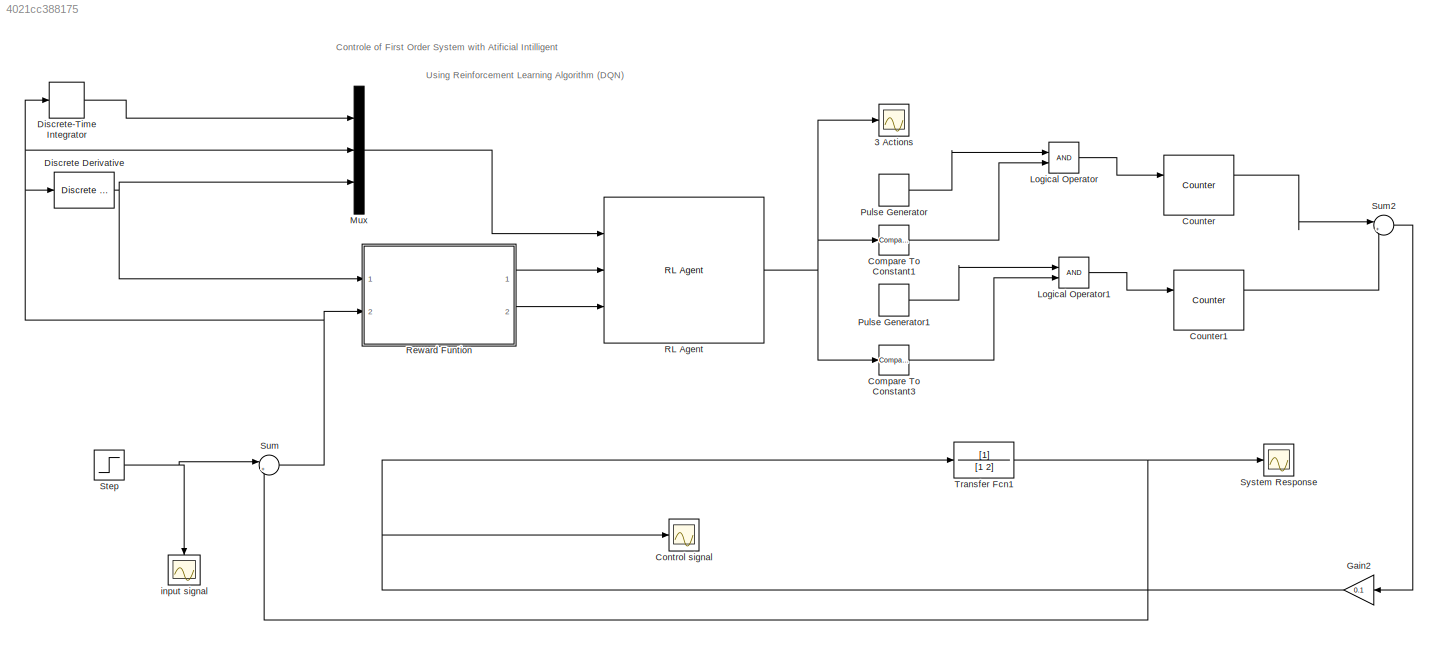
MODEL slx_4021cc388175
KIND model
CONFIG AbsTol = auto
CONFIG EnableMultiTasking = off
CONFIG FixedStep = auto
CONFIG MaxStep = auto
CONFIG MinStep = auto
CONFIG RelTol = 1e-1
CONFIG SampleTimeConstraint = Unconstrained
CONFIG Solver = VariableStepAuto
CONFIG SolverName = VariableStepAuto
CONFIG StartTime = 0.0
CONFIG StopTime = 10.0
BLOCK [Scope] 3 Actions
  Floating = off
  NumInputPorts = 1
  Ports = [1]
  ScopeSpecificationString = Simulink.scopes.TimeScopeBlockCfg('CurrentConfiguration', extmgr.ConfigurationSet(extmgr.Configuration('Core','General UI',true),extmgr.Configuration('Core','Source UI',true),extmgr.Configuration('Sources','WiredSimulink',true,'DataLoggingVariableName','ScopeData2'),extmgr.Configuration('Visuals','Time Domain',true,'SerializedDisplays',{struct('MinYLimReal','-1.25','MaxYLimReal','1.25','YLabelReal...<+1426ch>
BLOCK [Reference] Compare To Constant1  REF=simulink/Logic and Bit
Operations/Compare
To Constant
  Ports = [1, 1]
  SourceBlock = simulink/Logic and Bit\nOperations/Compare\nTo Constant
  SourceProductBaseCode = SL
  SourceProductName = Simulink
  SourceType = Compare To Constant
BLOCK [Reference] Compare To Constant3  REF=simulink/Logic and Bit
Operations/Compare
To Constant
  Ports = [1, 1]
  SourceBlock = simulink/Logic and Bit\nOperations/Compare\nTo Constant
  SourceProductBaseCode = SL
  SourceProductName = Simulink
  SourceType = Compare To Constant
BLOCK [Scope] Control signal
  Floating = off
  NumInputPorts = 1
  Ports = [1]
  ScopeSpecificationString = Simulink.scopes.TimeScopeBlockCfg('CurrentConfiguration', extmgr.ConfigurationSet(extmgr.Configuration('Core','General UI',true),extmgr.Configuration('Core','Source UI',true),extmgr.Configuration('Sources','WiredSimulink',true,'DataLoggingVariableName','ScopeData2'),extmgr.Configuration('Visuals','Time Domain',true,'SerializedDisplays',{struct('MinYLimReal','-0.1375','MaxYLimReal','1.2375','YLabel...<+1435ch>
BLOCK [Reference] Counter  REF=dspswit3/Counter
  Ports = [2, 2]
  SourceBlock = dspswit3/Counter
  SourceProductBaseCode = DS
  SourceProductName = DSP System Toolbox
  SourceType = Counter
BLOCK [Reference] Counter1  REF=dspswit3/Counter
  Ports = [2, 2]
  SourceBlock = dspswit3/Counter
  SourceProductBaseCode = DS
  SourceProductName = DSP System Toolbox
  SourceType = Counter
BLOCK [Reference] Discrete Derivative  REF=simulink/Discrete/Discrete Derivative
  Ports = [1, 1]
  SourceBlock = simulink/Discrete/Discrete Derivative
  SourceProductBaseCode = SL
  SourceProductName = Simulink
  SourceType = Discrete Derivative
BLOCK [DiscreteIntegrator] Discrete-Time Integrator
  ICPrevOutput = DiscIntNeverNeededParam
  ICPrevScaledInput = DiscIntNeverNeededParam
  InitialConditionSetting = Auto
  Ports = [1, 1]
  SampleTime = Ts
BLOCK [Gain] Gain2
  Gain = 0.1
  OutDataTypeStr = Inherit: Inherit via internal rule
  ParamDataTypeStr = Inherit: Inherit via internal rule
  SaturateOnIntegerOverflow = off
BLOCK [Logic] Logical Operator
  AllPortsSameDT = off
  OutDataTypeStr = boolean
  Ports = [2, 1]
BLOCK [Logic] Logical Operator1
  AllPortsSameDT = off
  OutDataTypeStr = boolean
  Ports = [2, 1]
BLOCK [Mux] Mux
  DisplayOption = bar
  Inputs = 3
  Ports = [3, 1]
BLOCK [DiscretePulseGenerator] Pulse Generator
  Period = 0.1
  Ports = [0, 1]
  PulseType = Time based
  PulseWidth = 0.05
BLOCK [DiscretePulseGenerator] Pulse Generator1
  Period = 0.1
  Ports = [0, 1]
  PulseType = Time based
  PulseWidth = 0.05
BLOCK [Reference] RL Agent  REF=rllib/RL Agent
  Ports = [3, 1]
  SourceBlock = rllib/RL Agent
  SourceProductBaseCode = RL
  SourceProductName = Reinforcement Learning Toolbox
  SourceType = RL Agent
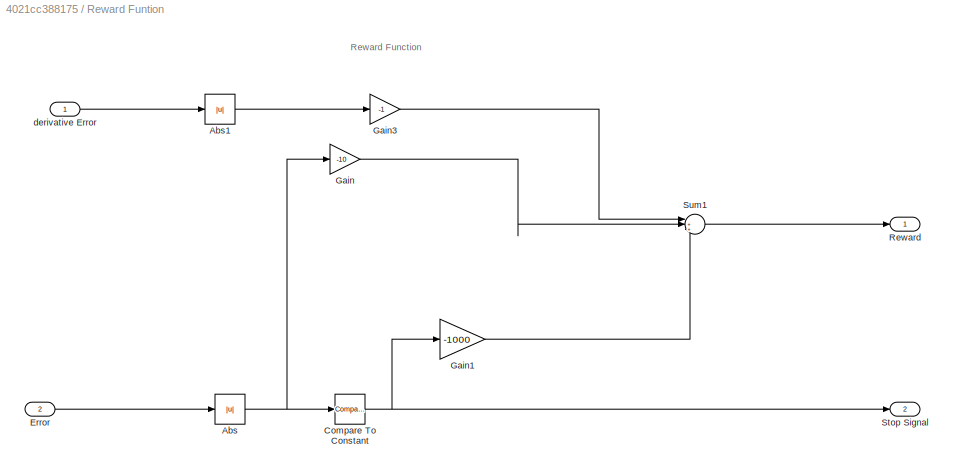
BLOCK [SubSystem] Reward Funtion
  Ports = [2, 2]
  RequestExecContextInheritance = off
BLOCK [Abs] Reward Funtion/Abs
  SaturateOnIntegerOverflow = off
BLOCK [Abs] Reward Funtion/Abs1
  SaturateOnIntegerOverflow = off
BLOCK [Reference] Reward Funtion/Compare To Constant  REF=simulink/Logic and Bit
Operations/Compare
To Constant
  Ports = [1, 1]
  SourceBlock = simulink/Logic and Bit\nOperations/Compare\nTo Constant
  SourceProductBaseCode = SL
  SourceProductName = Simulink
  SourceType = Compare To Constant
BLOCK [Inport] Reward Funtion/Error
  IconDisplay = Port number
  Port = 2
BLOCK [Gain] Reward Funtion/Gain
  Gain = -10
  OutDataTypeStr = Inherit: Inherit via internal rule
  ParamDataTypeStr = Inherit: Inherit via internal rule
  SaturateOnIntegerOverflow = off
BLOCK [Gain] Reward Funtion/Gain1
  Gain = -1000
  OutDataTypeStr = Inherit: Inherit via internal rule
  ParamDataTypeStr = Inherit: Inherit via internal rule
  SaturateOnIntegerOverflow = off
BLOCK [Gain] Reward Funtion/Gain3
  Gain = -1
  OutDataTypeStr = Inherit: Inherit via internal rule
  ParamDataTypeStr = Inherit: Inherit via internal rule
  SaturateOnIntegerOverflow = off
BLOCK [Outport] Reward Funtion/Reward
  IconDisplay = Port number
BLOCK [Outport] Reward Funtion/Stop Signal
  IconDisplay = Port number
  Port = 2
BLOCK [Sum] Reward Funtion/Sum1
  IconShape = round
  InputSameDT = off
  Inputs = |+++
  OutDataTypeStr = Inherit: Inherit via internal rule
  Ports = [3, 1]
  SaturateOnIntegerOverflow = off
BLOCK [Inport] Reward Funtion/derivative Error
  IconDisplay = Port number
BLOCK [Step] Step
  SampleTime = 0
  Time = 0
BLOCK [Sum] Sum
  IconShape = round
  InputSameDT = off
  Inputs = |+-
  OutDataTypeStr = Inherit: Inherit via internal rule
  Ports = [2, 1]
  SaturateOnIntegerOverflow = off
BLOCK [Sum] Sum2
  IconShape = round
  InputSameDT = off
  Inputs = |+-
  OutDataTypeStr = Inherit: Inherit via internal rule
  Ports = [2, 1]
  SaturateOnIntegerOverflow = off
BLOCK [Scope] System Response
  Floating = off
  NumInputPorts = 1
  Ports = [1]
  ScopeSpecificationString = Simulink.scopes.TimeScopeBlockCfg('CurrentConfiguration', extmgr.ConfigurationSet(extmgr.Configuration('Core','General UI',true),extmgr.Configuration('Core','Source UI',true),extmgr.Configuration('Sources','WiredSimulink',true,'DataLoggingVariableName','ScopeData1'),extmgr.Configuration('Visuals','Time Domain',true,'SerializedDisplays',{struct('MinYLimReal','-0.05565','MaxYLimReal','0.50081','YLab...<+1449ch>
BLOCK [TransferFcn] Transfer Fcn1
  Denominator = [1 2]
BLOCK [Scope] input signal
  Floating = off
  NumInputPorts = 1
  Ports = [1]
  ScopeSpecificationString = Simulink.scopes.TimeScopeBlockCfg('CurrentConfiguration', extmgr.ConfigurationSet(extmgr.Configuration('Core','General UI',true),extmgr.Configuration('Core','Source UI',true),extmgr.Configuration('Sources','WiredSimulink',true,'DataLoggingVariableName','ScopeData1'),extmgr.Configuration('Visuals','Time Domain',true,'SerializedDisplays',{struct('MinYLimReal','0.32101','MaxYLimReal','0.52101','YLabe...<+1438ch>
ANNOTATION (root): Using Reinforcement Learning Algorithm (DQN)
ANNOTATION (root): Controle of First Order System with Atificial Intilligent
ANNOTATION Reward Funtion: Reward Function
LINE Compare To Constant1:1 -> Logical Operator:2
LINE Compare To Constant3:1 -> Logical Operator1:2
LINE Counter1:1 -> Sum2:2
LINE Counter:1 -> Sum2:1
NET Discrete Derivative:1 -> Mux:3, Reward Funtion:1
LINE Discrete-Time Integrator:1 -> Mux:1
NET Gain2:1 -> Control signal:1, Transfer Fcn1:1
LINE Logical Operator1:1 -> Counter1:1
LINE Logical Operator:1 -> Counter:1
LINE Mux:1 -> RL Agent:1
LINE Pulse Generator1:1 -> Logical Operator1:1
LINE Pulse Generator:1 -> Logical Operator:1
NET RL Agent:1 -> 3 Actions:1, Compare To Constant1:1, Compare To Constant3:1
LINE Reward Funtion/Abs1:1 -> Reward Funtion/Gain3:1
NET Reward Funtion/Abs:1 -> Reward Funtion/Compare To Constant:1, Reward Funtion/Gain:1
NET Reward Funtion/Compare To Constant:1 -> Reward Funtion/Gain1:1, Reward Funtion/Stop Signal:1
LINE Reward Funtion/Error:1 -> Reward Funtion/Abs:1
LINE Reward Funtion/Gain1:1 -> Reward Funtion/Sum1:3
LINE Reward Funtion/Gain3:1 -> Reward Funtion/Sum1:1
LINE Reward Funtion/Gain:1 -> Reward Funtion/Sum1:2
LINE Reward Funtion/Sum1:1 -> Reward Funtion/Reward:1
LINE Reward Funtion/derivative Error:1 -> Reward Funtion/Abs1:1
LINE Reward Funtion:1 -> RL Agent:2
LINE Reward Funtion:2 -> RL Agent:3
NET Step:1 -> Sum:1, input signal:1
LINE Sum2:1 -> Gain2:1
NET Sum:1 -> Discrete Derivative:1, Discrete-Time Integrator:1, Mux:2, Reward Funtion:2
NET Transfer Fcn1:1 -> Sum:2, System Response:1
note: NET lines group one-source signal fan-out (src -> all destinations, sorted); 1:1 wires keep LINE
